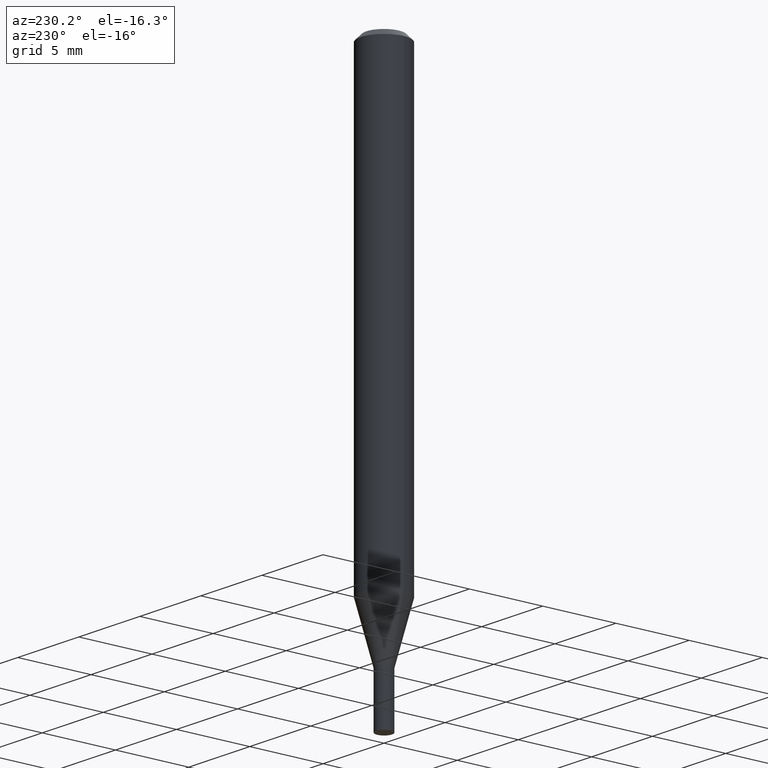
[diagram: clean part render]
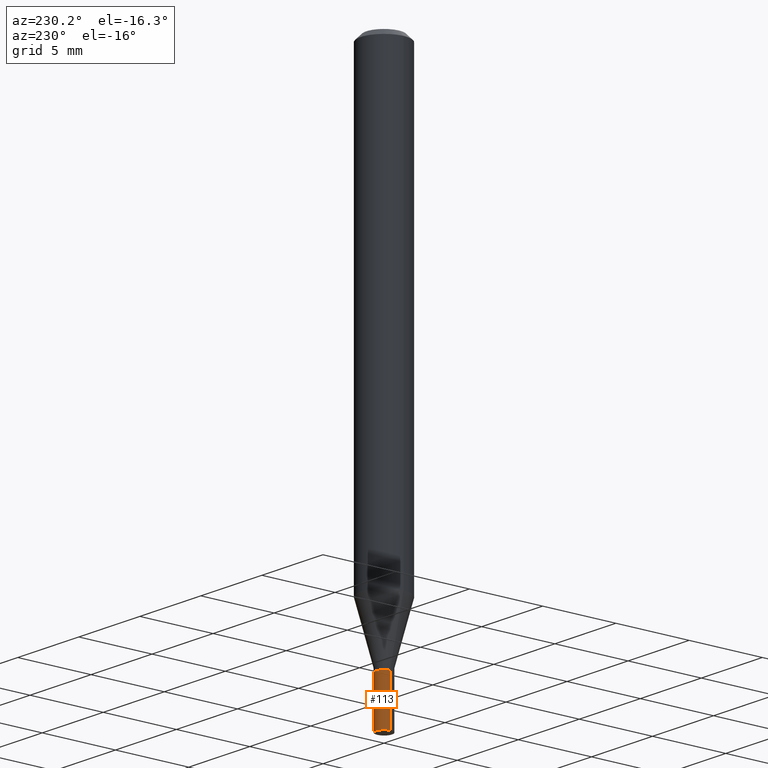
[diagram: same view with one face highlighted and labeled with its STEP entity id]
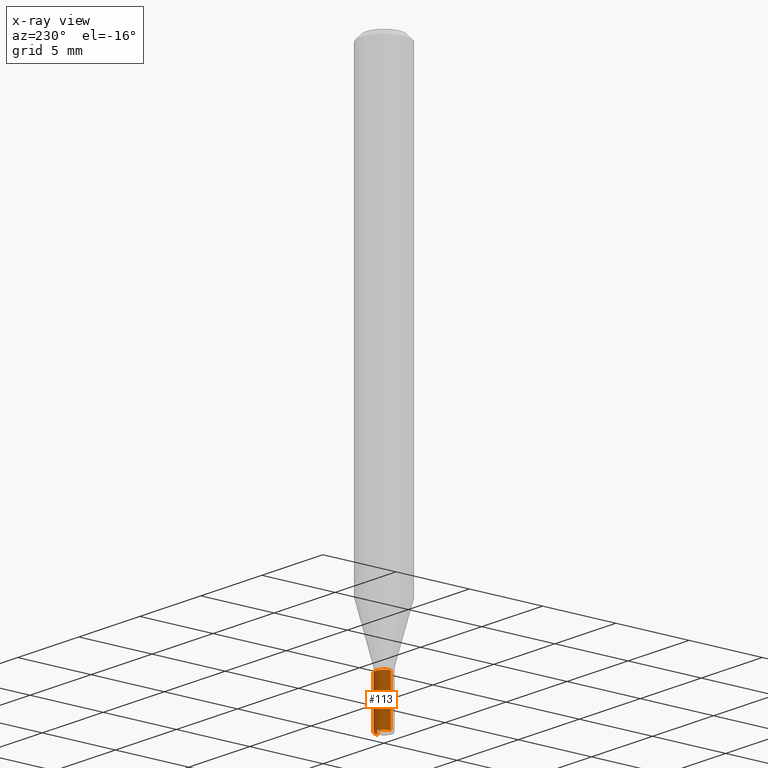
[diagram: x-ray of the same camera — body ghosted, the highlighted face saturated]
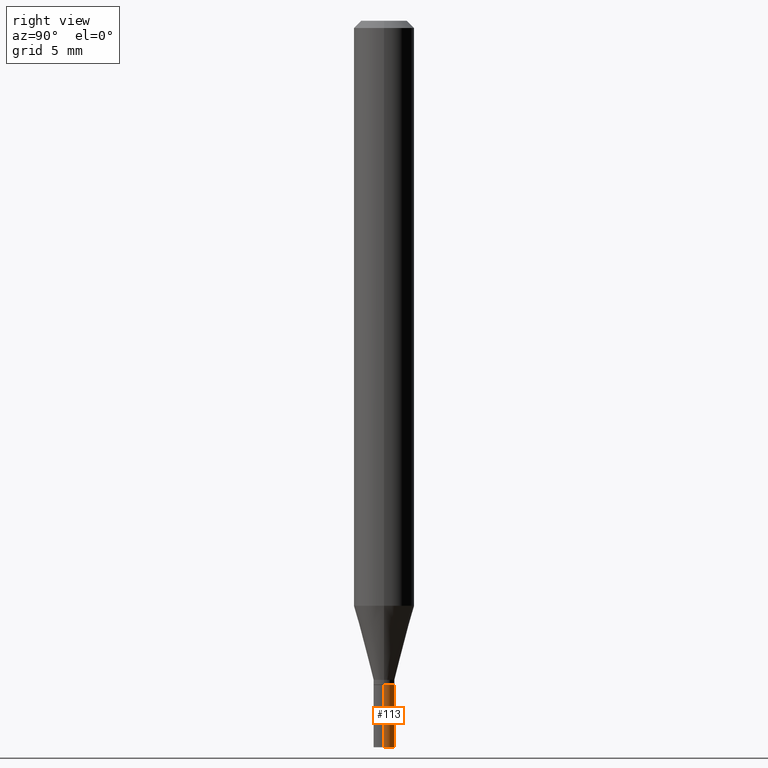
[diagram: same view with one face highlighted and labeled with its STEP entity id]
A machine part, auxiliary view. The second image highlights one B-rep face of the part: STEP entity #113.
The next image is the same camera in x-ray: the body ghosted, the highlighted face saturated — about 0% of this face is hidden behind the body in this view.
A second angle (right view) of the same face is appended — the face is thin or edge-on in the first view.
In plain terms, the highlighted cylindrical surface (edge-blend (fillet) strip) has radius 0.5461 mm, axis along (-0, 0, 1).
Its self-contained STEP definition (entity closure, byte-faithful):
#15 = FACE_OUTER_BOUND ( 'NONE', #334, .T. ) ;
#28 = VECTOR ( 'NONE', #306, 39.37007874015748143 ) ;
#29 = CARTESIAN_POINT ( 'NONE',  ( 0.02150000000000000175, -5.387355705834973006E-15, -1.500000000000000222 ) ) ;
#36 = AXIS2_PLACEMENT_3D ( 'NONE', #299, #444, #130 ) ;
#46 = EDGE_CURVE ( 'NONE', #75, #450, #421, .T. ) ;
#50 = LINE ( 'NONE', #242, #28 ) ;
#51 = VECTOR ( 'NONE', #386, 39.37007874015748143 ) ;
#65 = ORIENTED_EDGE ( 'NONE', *, *, #46, .F. ) ;
#75 = VERTEX_POINT ( 'NONE', #29 ) ;
#76 = DIRECTION ( 'NONE',  ( -2.445468806185136597E-29, 3.491481338843145583E-15, 1.000000000000000000 ) ) ;
#97 = ORIENTED_EDGE ( 'NONE', *, *, #322, .T. ) ;
#113 = ADVANCED_FACE ( 'NONE', ( #15 ), #128, .T. ) ;
#116 = CARTESIAN_POINT ( 'NONE',  ( 3.668203209277704895E-29, -5.237222008264718177E-15, -1.500000000000000222 ) ) ;
#121 = CIRCLE ( 'NONE', #36, 0.02150000000000000175 ) ;
#128 = CYLINDRICAL_SURFACE ( 'NONE', #301, 0.02150000000000000175 ) ;
#130 = DIRECTION ( 'NONE',  ( 1.000000000000000000, -6.982962677686265133E-15, 0.000000000000000000 ) ) ;
#193 = CARTESIAN_POINT ( 'NONE',  ( -0.02150000000000000175, -4.859254773720913469E-15, -1.500000000000000222 ) ) ;
#202 = EDGE_CURVE ( 'NONE', #450, #365, #121, .T. ) ;
#205 = CARTESIAN_POINT ( 'NONE',  ( 0.02150000000000000175, -1.501336975702547303E-16, 1.048378006796126202E-30 ) ) ;
#222 = CARTESIAN_POINT ( 'NONE',  ( -0.02150000000000000175, -4.859254773720913469E-15, -1.371000000000000218 ) ) ;
#224 = DIRECTION ( 'NONE',  ( 1.000000000000000000, -6.982962677686265133E-15, 0.000000000000000000 ) ) ;
#242 = CARTESIAN_POINT ( 'NONE',  ( -0.02150000000000000175, 1.527666881884215524E-16, -1.057571044404804700E-30 ) ) ;
#251 = EDGE_CURVE ( 'NONE', #75, #382, #293, .T. ) ;
#276 = ORIENTED_EDGE ( 'NONE', *, *, #202, .F. ) ;
#293 = CIRCLE ( 'NONE', #363, 0.02150000000000000175 ) ;
#298 = DIRECTION ( 'NONE',  ( -2.445468806185136597E-29, 3.491481338843145583E-15, 1.000000000000000000 ) ) ;
#299 = CARTESIAN_POINT ( 'NONE',  ( 3.352737733279822651E-29, -4.786820915553953690E-15, -1.371000000000000218 ) ) ;
#301 = AXIS2_PLACEMENT_3D ( 'NONE', #447, #298, #371 ) ;
#306 = DIRECTION ( 'NONE',  ( -2.445468806185136877E-29, 3.491481338843145188E-15, 1.000000000000000000 ) ) ;
#309 = CARTESIAN_POINT ( 'NONE',  ( 0.02150000000000000175, -4.936954613124208519E-15, -1.371000000000000218 ) ) ;
#322 = EDGE_CURVE ( 'NONE', #382, #365, #50, .T. ) ;
#334 = EDGE_LOOP ( 'NONE', ( #361, #97, #276, #65 ) ) ;
#361 = ORIENTED_EDGE ( 'NONE', *, *, #251, .T. ) ;
#363 = AXIS2_PLACEMENT_3D ( 'NONE', #116, #76, #224 ) ;
#365 = VERTEX_POINT ( 'NONE', #222 ) ;
#371 = DIRECTION ( 'NONE',  ( 1.000000000000000000, -6.982962677686265922E-15, 4.876176775795935232E-29 ) ) ;
#382 = VERTEX_POINT ( 'NONE', #193 ) ;
#386 = DIRECTION ( 'NONE',  ( -2.445468806185136877E-29, 3.491481338843145188E-15, 1.000000000000000000 ) ) ;
#421 = LINE ( 'NONE', #205, #51 ) ;
#444 = DIRECTION ( 'NONE',  ( -2.445468806185136597E-29, 3.491481338843145583E-15, 1.000000000000000000 ) ) ;
#447 = CARTESIAN_POINT ( 'NONE',  ( 0.000000000000000000, 0.000000000000000000, 0.000000000000000000 ) ) ;
#450 = VERTEX_POINT ( 'NONE', #309 ) ;